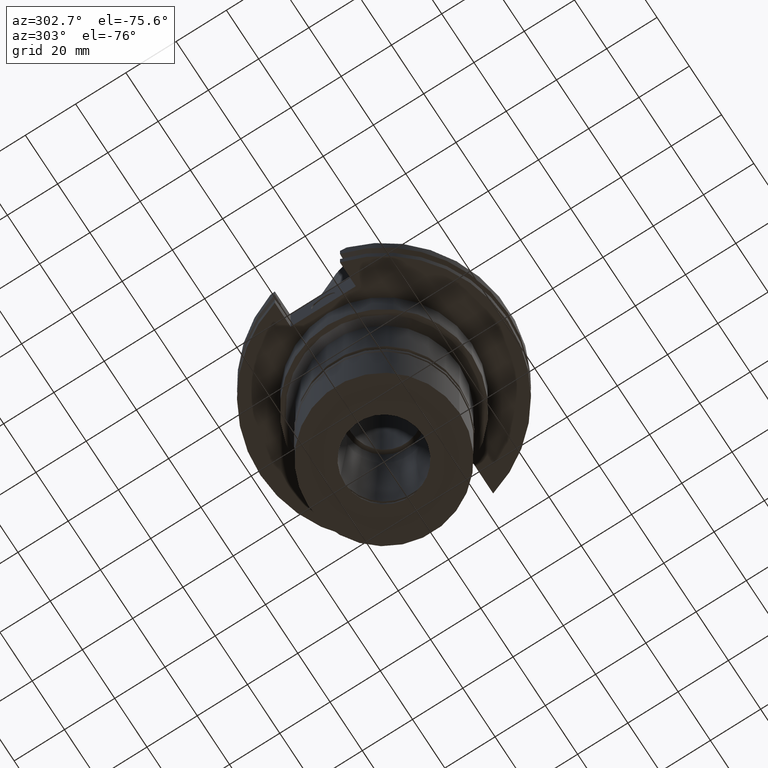
[diagram: clean part render]
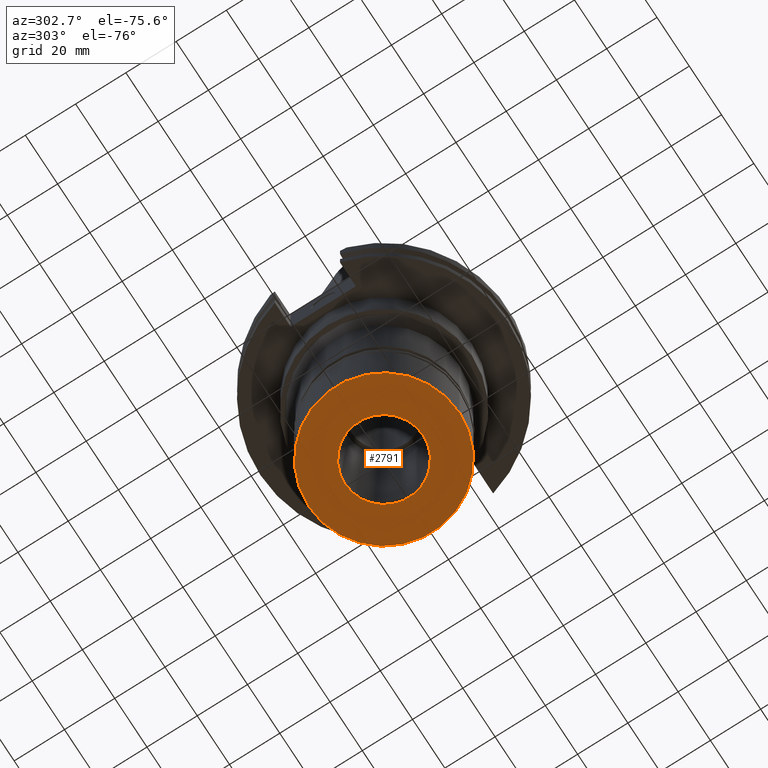
[diagram: same view with one face highlighted and labeled with its STEP entity id]
A machine part, auxiliary view. The second image highlights one B-rep face of the part: STEP entity #2791.
In plain terms, the highlighted planar face has unit normal (0, 0, -1).
Its self-contained STEP definition (entity closure, byte-faithful):
#70 = CIRCLE ( 'NONE', #274, 30.00000000000000000 ) ;
#141 = ORIENTED_EDGE ( 'NONE', *, *, #495, .F. ) ;
#219 = ORIENTED_EDGE ( 'NONE', *, *, #1024, .F. ) ;
#226 = ORIENTED_EDGE ( 'NONE', *, *, #1884, .F. ) ;
#274 = AXIS2_PLACEMENT_3D ( 'NONE', #1253, #3038, #1313 ) ;
#331 = CARTESIAN_POINT ( 'NONE',  ( 0.0000000000000000000, -30.00000000000000000, -30.80000000000000071 ) ) ;
#378 = VERTEX_POINT ( 'NONE', #1862 ) ;
#463 = CIRCLE ( 'NONE', #1798, 15.54999999999999893 ) ;
#495 = EDGE_CURVE ( 'NONE', #2406, #1468, #597, .T. ) ;
#563 = PLANE ( 'NONE',  #2065 ) ;
#597 = CIRCLE ( 'NONE', #1892, 30.00000000000000000 ) ;
#623 = CARTESIAN_POINT ( 'NONE',  ( 0.0000000000000000000, 15.54999999999999893, -30.80000000000000071 ) ) ;
#1024 = EDGE_CURVE ( 'NONE', #2409, #378, #2625, .T. ) ;
#1025 = CARTESIAN_POINT ( 'NONE',  ( 0.0000000000000000000, 30.00000000000000000, -30.80000000000000071 ) ) ;
#1044 = FACE_BOUND ( 'NONE', #2732, .T. ) ;
#1076 = CARTESIAN_POINT ( 'NONE',  ( 0.0000000000000000000, 0.0000000000000000000, -30.80000000000000071 ) ) ;
#1253 = CARTESIAN_POINT ( 'NONE',  ( 0.0000000000000000000, 0.0000000000000000000, -30.80000000000000071 ) ) ;
#1313 = DIRECTION ( 'NONE',  ( 0.0000000000000000000, -1.000000000000000000, 0.0000000000000000000 ) ) ;
#1468 = VERTEX_POINT ( 'NONE', #331 ) ;
#1539 = DIRECTION ( 'NONE',  ( 0.0000000000000000000, -1.000000000000000000, 0.0000000000000000000 ) ) ;
#1618 = EDGE_LOOP ( 'NONE', ( #141, #2481 ) ) ;
#1688 = CARTESIAN_POINT ( 'NONE',  ( 0.0000000000000000000, 0.0000000000000000000, -30.80000000000000071 ) ) ;
#1746 = DIRECTION ( 'NONE',  ( 0.0000000000000000000, 0.0000000000000000000, -1.000000000000000000 ) ) ;
#1786 = CARTESIAN_POINT ( 'NONE',  ( 0.0000000000000000000, 0.0000000000000000000, -30.80000000000000071 ) ) ;
#1798 = AXIS2_PLACEMENT_3D ( 'NONE', #1076, #2286, #3058 ) ;
#1862 = CARTESIAN_POINT ( 'NONE',  ( 0.0000000000000000000, -15.54999999999999893, -30.80000000000000071 ) ) ;
#1884 = EDGE_CURVE ( 'NONE', #378, #2409, #463, .T. ) ;
#1892 = AXIS2_PLACEMENT_3D ( 'NONE', #1786, #3050, #2775 ) ;
#2004 = FACE_OUTER_BOUND ( 'NONE', #1618, .T. ) ;
#2038 = AXIS2_PLACEMENT_3D ( 'NONE', #1688, #2690, #2656 ) ;
#2065 = AXIS2_PLACEMENT_3D ( 'NONE', #3021, #1746, #1539 ) ;
#2286 = DIRECTION ( 'NONE',  ( 0.0000000000000000000, 0.0000000000000000000, -1.000000000000000000 ) ) ;
#2406 = VERTEX_POINT ( 'NONE', #1025 ) ;
#2409 = VERTEX_POINT ( 'NONE', #623 ) ;
#2481 = ORIENTED_EDGE ( 'NONE', *, *, #2777, .F. ) ;
#2625 = CIRCLE ( 'NONE', #2038, 15.54999999999999893 ) ;
#2656 = DIRECTION ( 'NONE',  ( 0.0000000000000000000, 1.000000000000000000, 0.0000000000000000000 ) ) ;
#2690 = DIRECTION ( 'NONE',  ( 0.0000000000000000000, 0.0000000000000000000, -1.000000000000000000 ) ) ;
#2732 = EDGE_LOOP ( 'NONE', ( #219, #226 ) ) ;
#2775 = DIRECTION ( 'NONE',  ( 0.0000000000000000000, 1.000000000000000000, 0.0000000000000000000 ) ) ;
#2777 = EDGE_CURVE ( 'NONE', #1468, #2406, #70, .T. ) ;
#2791 = ADVANCED_FACE ( 'NONE', ( #2004, #1044 ), #563, .T. ) ;
#3021 = CARTESIAN_POINT ( 'NONE',  ( 0.0000000000000000000, 0.0000000000000000000, -30.80000000000000071 ) ) ;
#3038 = DIRECTION ( 'NONE',  ( 0.0000000000000000000, 0.0000000000000000000, 1.000000000000000000 ) ) ;
#3050 = DIRECTION ( 'NONE',  ( 0.0000000000000000000, 0.0000000000000000000, 1.000000000000000000 ) ) ;
#3058 = DIRECTION ( 'NONE',  ( 0.0000000000000000000, -1.000000000000000000, 0.0000000000000000000 ) ) ;